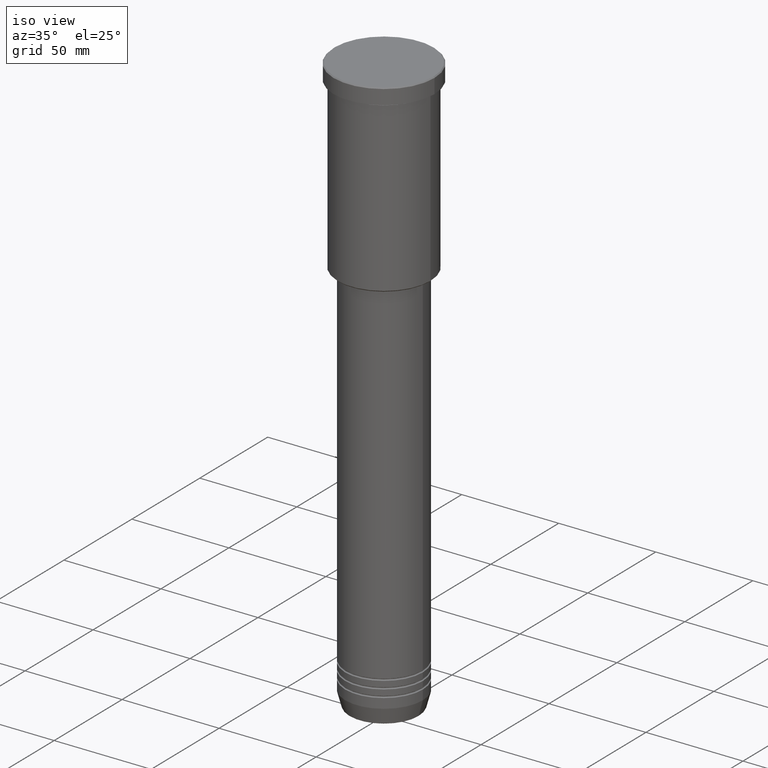
[diagram: clean part render]
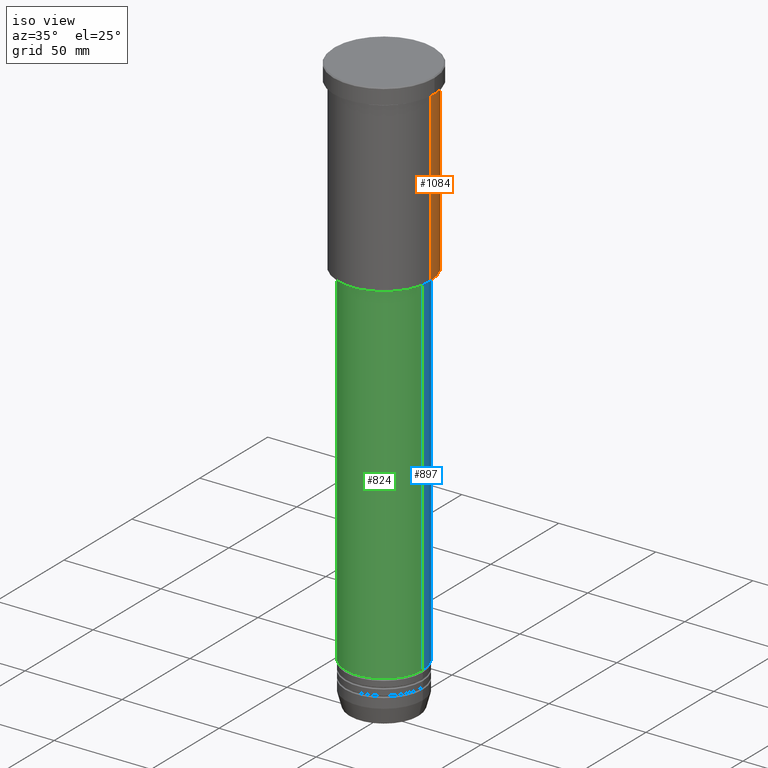
[diagram: same view with three faces highlighted in distinct colors, each labeled with its STEP entity id]
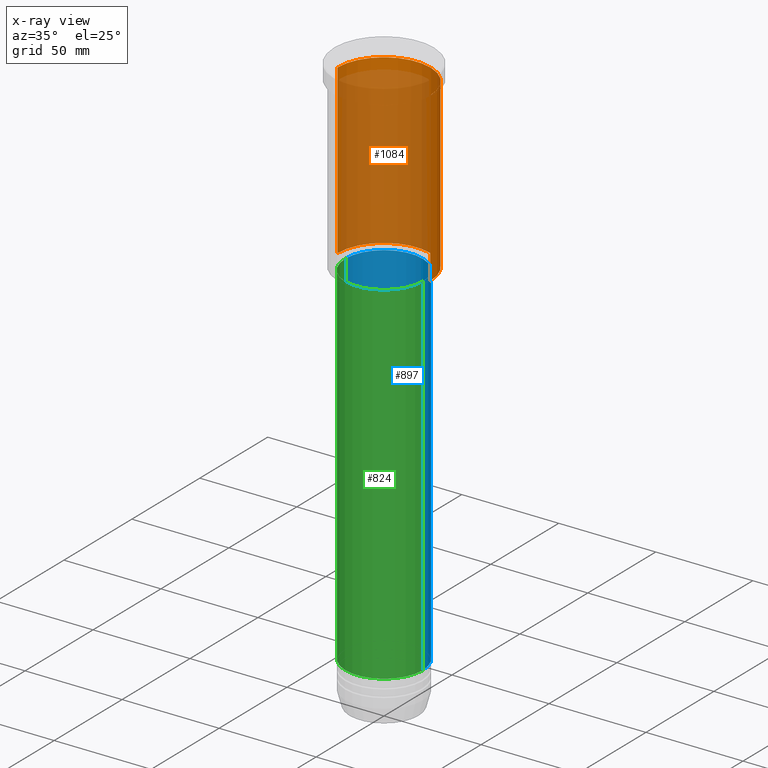
[diagram: x-ray of the same camera — body ghosted, the three highlighted faces saturated]
A machine part, iso view with three faces highlighted in distinct colors.
The next image is the same camera in x-ray (body ghosted, the three faces saturated) — at least one of them is partly hidden behind the body in this view.
Their STEP definitions:

[orange] entity #1084 — the highlighted cylindrical surface (partial cylindrical patch) has radius 24 mm, axis along (-0, -0, 1).
#17 = CARTESIAN_POINT ( 'NONE',  ( -24.00000000000000000, 2.939152317953647894E-15, -8.999999999999994671 ) ) ;
#48 = CIRCLE ( 'NONE', #298, 24.00000000000000000 ) ;
#62 = CARTESIAN_POINT ( 'NONE',  ( 24.00000000000000000, 0.000000000000000000, -95.49999999999998579 ) ) ;
#81 = DIRECTION ( 'NONE',  ( -0.000000000000000000, -0.000000000000000000, 1.000000000000000000 ) ) ;
#155 = CYLINDRICAL_SURFACE ( 'NONE', #344, 24.00000000000000000 ) ;
#203 = DIRECTION ( 'NONE',  ( 1.000000000000000000, 0.000000000000000000, 0.000000000000000000 ) ) ;
#239 = EDGE_CURVE ( 'NONE', #844, #1033, #48, .T. ) ;
#251 = VERTEX_POINT ( 'NONE', #17 ) ;
#298 = AXIS2_PLACEMENT_3D ( 'NONE', #616, #907, #457 ) ;
#299 = CIRCLE ( 'NONE', #558, 24.00000000000000000 ) ;
#318 = EDGE_CURVE ( 'NONE', #1033, #251, #982, .T. ) ;
#327 = FACE_OUTER_BOUND ( 'NONE', #1142, .T. ) ;
#339 = CARTESIAN_POINT ( 'NONE',  ( 24.00000000000000000, 0.000000000000000000, 0.000000000000000000 ) ) ;
#344 = AXIS2_PLACEMENT_3D ( 'NONE', #584, #1029, #939 ) ;
#406 = ORIENTED_EDGE ( 'NONE', *, *, #848, .F. ) ;
#438 = ORIENTED_EDGE ( 'NONE', *, *, #318, .T. ) ;
#457 = DIRECTION ( 'NONE',  ( -1.000000000000000000, 0.000000000000000000, 0.000000000000000000 ) ) ;
#545 = CARTESIAN_POINT ( 'NONE',  ( -24.00000000000000000, 2.939152317953647894E-15, 0.000000000000000000 ) ) ;
#558 = AXIS2_PLACEMENT_3D ( 'NONE', #836, #755, #203 ) ;
#584 = CARTESIAN_POINT ( 'NONE',  ( 0.000000000000000000, 0.000000000000000000, 0.000000000000000000 ) ) ;
#590 = VERTEX_POINT ( 'NONE', #759 ) ;
#601 = EDGE_CURVE ( 'NONE', #590, #251, #299, .T. ) ;
#616 = CARTESIAN_POINT ( 'NONE',  ( 0.000000000000000000, 0.000000000000000000, -95.49999999999998579 ) ) ;
#704 = DIRECTION ( 'NONE',  ( -0.000000000000000000, -0.000000000000000000, 1.000000000000000000 ) ) ;
#755 = DIRECTION ( 'NONE',  ( -0.000000000000000000, -0.000000000000000000, 1.000000000000000000 ) ) ;
#759 = CARTESIAN_POINT ( 'NONE',  ( 24.00000000000000000, 0.000000000000000000, -8.999999999999994671 ) ) ;
#782 = CARTESIAN_POINT ( 'NONE',  ( -24.00000000000000000, 2.939152317953647894E-15, -95.49999999999998579 ) ) ;
#829 = VECTOR ( 'NONE', #81, 1000.000000000000000 ) ;
#836 = CARTESIAN_POINT ( 'NONE',  ( 0.000000000000000000, 0.000000000000000000, -8.999999999999994671 ) ) ;
#844 = VERTEX_POINT ( 'NONE', #62 ) ;
#848 = EDGE_CURVE ( 'NONE', #844, #590, #961, .T. ) ;
#907 = DIRECTION ( 'NONE',  ( -0.000000000000000000, -0.000000000000000000, 1.000000000000000000 ) ) ;
#914 = ORIENTED_EDGE ( 'NONE', *, *, #239, .T. ) ;
#918 = ORIENTED_EDGE ( 'NONE', *, *, #601, .F. ) ;
#939 = DIRECTION ( 'NONE',  ( 1.000000000000000000, 0.000000000000000000, 0.000000000000000000 ) ) ;
#940 = VECTOR ( 'NONE', #704, 1000.000000000000000 ) ;
#961 = LINE ( 'NONE', #339, #940 ) ;
#982 = LINE ( 'NONE', #545, #829 ) ;
#1029 = DIRECTION ( 'NONE',  ( -0.000000000000000000, -0.000000000000000000, 1.000000000000000000 ) ) ;
#1033 = VERTEX_POINT ( 'NONE', #782 ) ;
#1084 = ADVANCED_FACE ( 'NONE', ( #327 ), #155, .T. ) ;
#1142 = EDGE_LOOP ( 'NONE', ( #914, #438, #918, #406 ) ) ;

[blue] entity #897 — the highlighted cylindrical surface (partial cylindrical patch) has radius 20 mm, axis along (-0, -0, 1).
#27 = VECTOR ( 'NONE', #74, 1000.000000000000000 ) ;
#41 = EDGE_LOOP ( 'NONE', ( #115, #710, #1165, #244 ) ) ;
#74 = DIRECTION ( 'NONE',  ( -0.000000000000000000, -0.000000000000000000, 1.000000000000000000 ) ) ;
#90 = EDGE_CURVE ( 'NONE', #360, #807, #1183, .T. ) ;
#115 = ORIENTED_EDGE ( 'NONE', *, *, #727, .T. ) ;
#127 = CIRCLE ( 'NONE', #325, 20.00000000000000355 ) ;
#139 = VERTEX_POINT ( 'NONE', #547 ) ;
#153 = LINE ( 'NONE', #160, #27 ) ;
#160 = CARTESIAN_POINT ( 'NONE',  ( -20.00000000000000355, 2.449293598294706907E-15, 0.000000000000000000 ) ) ;
#226 = CARTESIAN_POINT ( 'NONE',  ( 20.00000000000000355, 0.000000000000000000, -97.00000000000002842 ) ) ;
#244 = ORIENTED_EDGE ( 'NONE', *, *, #90, .F. ) ;
#270 = DIRECTION ( 'NONE',  ( 1.000000000000000000, 0.000000000000000000, 0.000000000000000000 ) ) ;
#297 = CARTESIAN_POINT ( 'NONE',  ( 0.000000000000000000, 0.000000000000000000, 0.000000000000000000 ) ) ;
#325 = AXIS2_PLACEMENT_3D ( 'NONE', #752, #904, #489 ) ;
#343 = CARTESIAN_POINT ( 'NONE',  ( 20.00000000000000355, 0.000000000000000000, -277.9999999999999432 ) ) ;
#360 = VERTEX_POINT ( 'NONE', #343 ) ;
#408 = DIRECTION ( 'NONE',  ( -0.000000000000000000, -0.000000000000000000, 1.000000000000000000 ) ) ;
#471 = DIRECTION ( 'NONE',  ( -0.000000000000000000, -0.000000000000000000, 1.000000000000000000 ) ) ;
#489 = DIRECTION ( 'NONE',  ( 1.000000000000000000, 0.000000000000000000, 0.000000000000000000 ) ) ;
#504 = CARTESIAN_POINT ( 'NONE',  ( 0.000000000000000000, 0.000000000000000000, -277.9999999999999432 ) ) ;
#547 = CARTESIAN_POINT ( 'NONE',  ( -20.00000000000000355, 2.449293598294706907E-15, -277.9999999999999432 ) ) ;
#656 = CARTESIAN_POINT ( 'NONE',  ( 20.00000000000000355, 0.000000000000000000, 0.000000000000000000 ) ) ;
#710 = ORIENTED_EDGE ( 'NONE', *, *, #754, .T. ) ;
#727 = EDGE_CURVE ( 'NONE', #360, #139, #912, .T. ) ;
#752 = CARTESIAN_POINT ( 'NONE',  ( 0.000000000000000000, 0.000000000000000000, -97.00000000000002842 ) ) ;
#754 = EDGE_CURVE ( 'NONE', #139, #1180, #153, .T. ) ;
#807 = VERTEX_POINT ( 'NONE', #226 ) ;
#812 = CYLINDRICAL_SURFACE ( 'NONE', #913, 20.00000000000000355 ) ;
#855 = DIRECTION ( 'NONE',  ( 1.000000000000000000, 0.000000000000000000, 0.000000000000000000 ) ) ;
#869 = FACE_OUTER_BOUND ( 'NONE', #41, .T. ) ;
#897 = ADVANCED_FACE ( 'NONE', ( #869 ), #812, .T. ) ;
#904 = DIRECTION ( 'NONE',  ( -0.000000000000000000, -0.000000000000000000, 1.000000000000000000 ) ) ;
#912 = CIRCLE ( 'NONE', #1103, 20.00000000000000355 ) ;
#913 = AXIS2_PLACEMENT_3D ( 'NONE', #297, #1175, #270 ) ;
#965 = CARTESIAN_POINT ( 'NONE',  ( -20.00000000000000355, 2.449293598294706907E-15, -97.00000000000002842 ) ) ;
#1003 = EDGE_CURVE ( 'NONE', #807, #1180, #127, .T. ) ;
#1103 = AXIS2_PLACEMENT_3D ( 'NONE', #504, #408, #855 ) ;
#1120 = VECTOR ( 'NONE', #471, 1000.000000000000000 ) ;
#1165 = ORIENTED_EDGE ( 'NONE', *, *, #1003, .F. ) ;
#1175 = DIRECTION ( 'NONE',  ( -0.000000000000000000, -0.000000000000000000, 1.000000000000000000 ) ) ;
#1180 = VERTEX_POINT ( 'NONE', #965 ) ;
#1183 = LINE ( 'NONE', #656, #1120 ) ;

[green] entity #824 — the highlighted cylindrical surface (partial cylindrical patch) has radius 20 mm, axis along (-0, -0, 1).
#2 = AXIS2_PLACEMENT_3D ( 'NONE', #100, #973, #1036 ) ;
#27 = VECTOR ( 'NONE', #74, 1000.000000000000000 ) ;
#74 = DIRECTION ( 'NONE',  ( -0.000000000000000000, -0.000000000000000000, 1.000000000000000000 ) ) ;
#82 = ORIENTED_EDGE ( 'NONE', *, *, #661, .T. ) ;
#90 = EDGE_CURVE ( 'NONE', #360, #807, #1183, .T. ) ;
#100 = CARTESIAN_POINT ( 'NONE',  ( 0.000000000000000000, 0.000000000000000000, -97.00000000000002842 ) ) ;
#139 = VERTEX_POINT ( 'NONE', #547 ) ;
#149 = ORIENTED_EDGE ( 'NONE', *, *, #90, .T. ) ;
#153 = LINE ( 'NONE', #160, #27 ) ;
#160 = CARTESIAN_POINT ( 'NONE',  ( -20.00000000000000355, 2.449293598294706907E-15, 0.000000000000000000 ) ) ;
#167 = ORIENTED_EDGE ( 'NONE', *, *, #754, .F. ) ;
#195 = CIRCLE ( 'NONE', #2, 20.00000000000000355 ) ;
#216 = DIRECTION ( 'NONE',  ( -0.000000000000000000, -0.000000000000000000, 1.000000000000000000 ) ) ;
#226 = CARTESIAN_POINT ( 'NONE',  ( 20.00000000000000355, 0.000000000000000000, -97.00000000000002842 ) ) ;
#252 = CARTESIAN_POINT ( 'NONE',  ( 0.000000000000000000, 0.000000000000000000, 0.000000000000000000 ) ) ;
#343 = CARTESIAN_POINT ( 'NONE',  ( 20.00000000000000355, 0.000000000000000000, -277.9999999999999432 ) ) ;
#353 = DIRECTION ( 'NONE',  ( -0.000000000000000000, -0.000000000000000000, 1.000000000000000000 ) ) ;
#360 = VERTEX_POINT ( 'NONE', #343 ) ;
#466 = EDGE_LOOP ( 'NONE', ( #167, #82, #149, #906 ) ) ;
#471 = DIRECTION ( 'NONE',  ( -0.000000000000000000, -0.000000000000000000, 1.000000000000000000 ) ) ;
#542 = AXIS2_PLACEMENT_3D ( 'NONE', #252, #353, #967 ) ;
#547 = CARTESIAN_POINT ( 'NONE',  ( -20.00000000000000355, 2.449293598294706907E-15, -277.9999999999999432 ) ) ;
#559 = EDGE_CURVE ( 'NONE', #1180, #807, #195, .T. ) ;
#620 = FACE_OUTER_BOUND ( 'NONE', #466, .T. ) ;
#656 = CARTESIAN_POINT ( 'NONE',  ( 20.00000000000000355, 0.000000000000000000, 0.000000000000000000 ) ) ;
#661 = EDGE_CURVE ( 'NONE', #139, #360, #843, .T. ) ;
#712 = CYLINDRICAL_SURFACE ( 'NONE', #542, 20.00000000000000355 ) ;
#754 = EDGE_CURVE ( 'NONE', #139, #1180, #153, .T. ) ;
#807 = VERTEX_POINT ( 'NONE', #226 ) ;
#824 = ADVANCED_FACE ( 'NONE', ( #620 ), #712, .T. ) ;
#843 = CIRCLE ( 'NONE', #1027, 20.00000000000000355 ) ;
#906 = ORIENTED_EDGE ( 'NONE', *, *, #559, .F. ) ;
#932 = DIRECTION ( 'NONE',  ( 1.000000000000000000, 0.000000000000000000, 0.000000000000000000 ) ) ;
#948 = CARTESIAN_POINT ( 'NONE',  ( 0.000000000000000000, 0.000000000000000000, -277.9999999999999432 ) ) ;
#965 = CARTESIAN_POINT ( 'NONE',  ( -20.00000000000000355, 2.449293598294706907E-15, -97.00000000000002842 ) ) ;
#967 = DIRECTION ( 'NONE',  ( 1.000000000000000000, 0.000000000000000000, 0.000000000000000000 ) ) ;
#973 = DIRECTION ( 'NONE',  ( -0.000000000000000000, -0.000000000000000000, 1.000000000000000000 ) ) ;
#1027 = AXIS2_PLACEMENT_3D ( 'NONE', #948, #216, #932 ) ;
#1036 = DIRECTION ( 'NONE',  ( 1.000000000000000000, 0.000000000000000000, 0.000000000000000000 ) ) ;
#1120 = VECTOR ( 'NONE', #471, 1000.000000000000000 ) ;
#1180 = VERTEX_POINT ( 'NONE', #965 ) ;
#1183 = LINE ( 'NONE', #656, #1120 ) ;